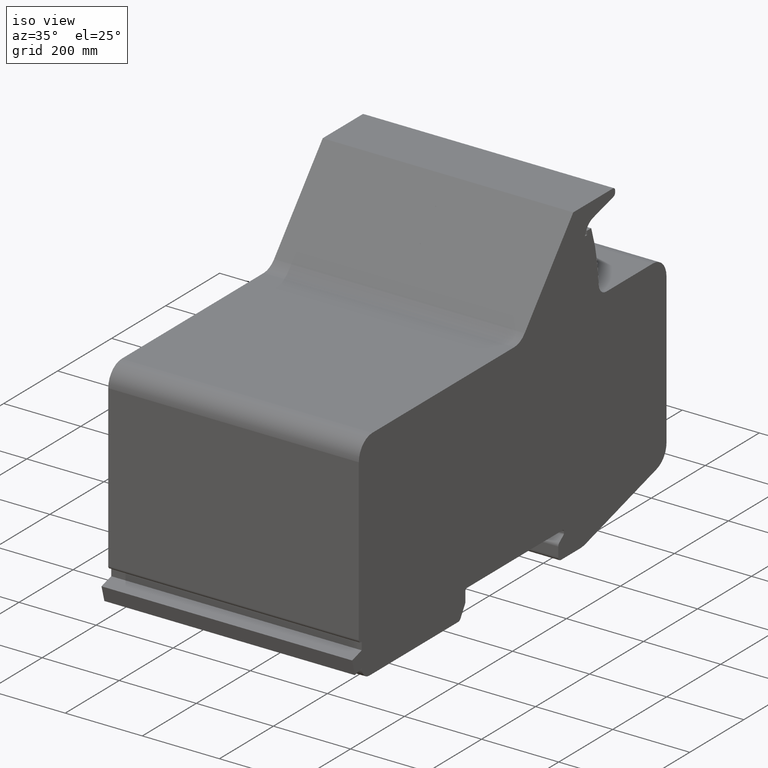
[diagram: clean part render]
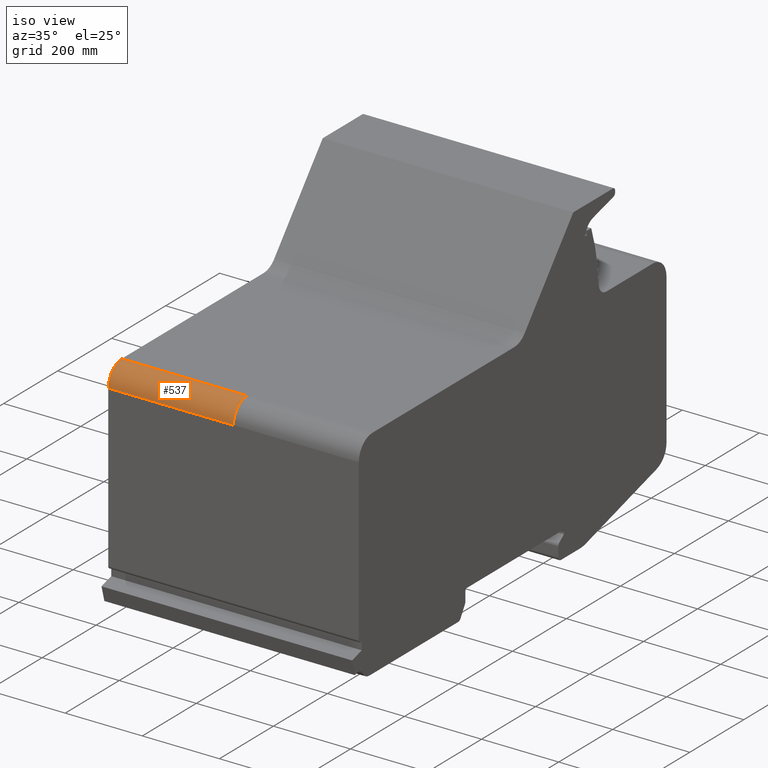
[diagram: same view with one face highlighted and labeled with its STEP entity id]
A machine part, iso view. The second image highlights one B-rep face of the part: STEP entity #537.
In plain terms, the highlighted cylindrical surface (edge-blend (fillet) strip) has radius 50 mm, axis along (1, 0, 0).
Its self-contained STEP definition (entity closure, byte-faithful):
#479=CARTESIAN_POINT('',(325.00000000000011,-755.0,447.5));
#480=VERTEX_POINT('',#479);
#487=CARTESIAN_POINT('',(0.0,-755.0,447.5));
#488=VERTEX_POINT('',#487);
#489=CARTESIAN_POINT('',(0.0,-755.0,447.5));
#490=DIRECTION('',(1.0,0.0,0.0));
#491=VECTOR('',#490,325.00000000000011);
#492=LINE('',#489,#491);
#493=EDGE_CURVE('',#488,#480,#492,.T.);
#505=CARTESIAN_POINT('',(0.0,-705.0,447.50000000000011));
#506=DIRECTION('',(1.0,0.0,0.0));
#507=DIRECTION('',(0.0,-0.707106781186549,0.707106781186546));
#508=AXIS2_PLACEMENT_3D('',#505,#506,#507);
#509=CYLINDRICAL_SURFACE('',#508,50.000000000000007);
#510=CARTESIAN_POINT('',(325.00000000000011,-705.0,497.50000000000011));
#511=VERTEX_POINT('',#510);
#512=CARTESIAN_POINT('',(325.00000000000011,-705.0,447.50000000000011));
#513=DIRECTION('',(-1.0,0.0,0.0));
#514=DIRECTION('',(0.0,-0.707106781186549,0.707106781186546));
#515=AXIS2_PLACEMENT_3D('',#512,#513,#514);
#516=CIRCLE('',#515,50.000000000000007);
#517=EDGE_CURVE('',#480,#511,#516,.T.);
#518=ORIENTED_EDGE('',*,*,#517,.T.);
#519=CARTESIAN_POINT('',(0.0,-705.0,497.50000000000011));
#520=VERTEX_POINT('',#519);
#521=CARTESIAN_POINT('',(0.0,-705.0,497.50000000000011));
#522=DIRECTION('',(1.0,0.0,0.0));
#523=VECTOR('',#522,325.00000000000011);
#524=LINE('',#521,#523);
#525=EDGE_CURVE('',#520,#511,#524,.T.);
#526=ORIENTED_EDGE('',*,*,#525,.F.);
#527=CARTESIAN_POINT('',(0.0,-705.0,447.50000000000011));
#528=DIRECTION('',(-1.0,0.0,0.0));
#529=DIRECTION('',(0.0,-0.707106781186549,0.707106781186546));
#530=AXIS2_PLACEMENT_3D('',#527,#528,#529);
#531=CIRCLE('',#530,50.000000000000007);
#532=EDGE_CURVE('',#488,#520,#531,.T.);
#533=ORIENTED_EDGE('',*,*,#532,.F.);
#534=ORIENTED_EDGE('',*,*,#493,.T.);
#535=EDGE_LOOP('',(#518,#526,#533,#534));
#536=FACE_OUTER_BOUND('',#535,.T.);
#537=ADVANCED_FACE('',(#536),#509,.T.);